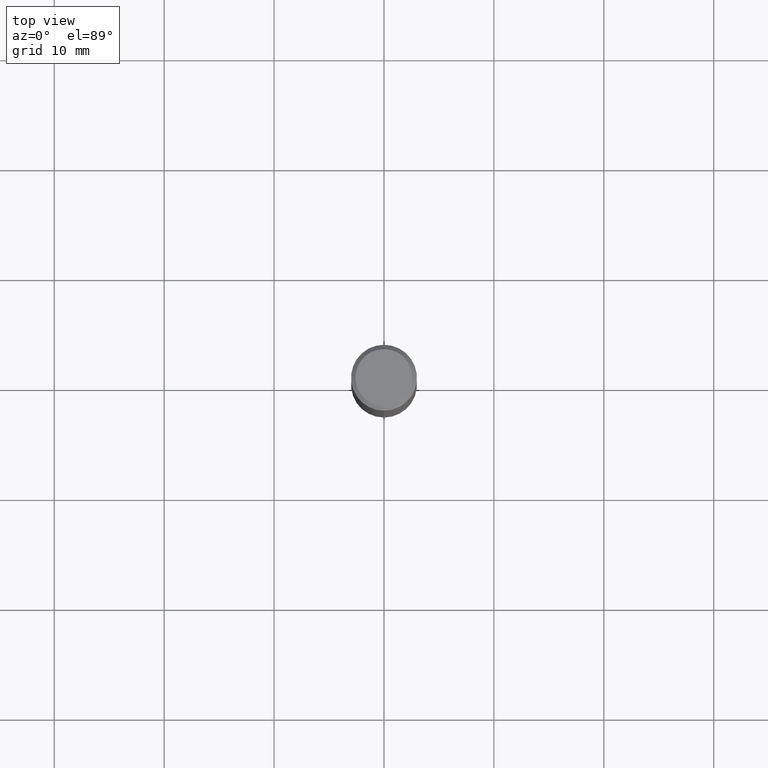
[diagram: clean part render]
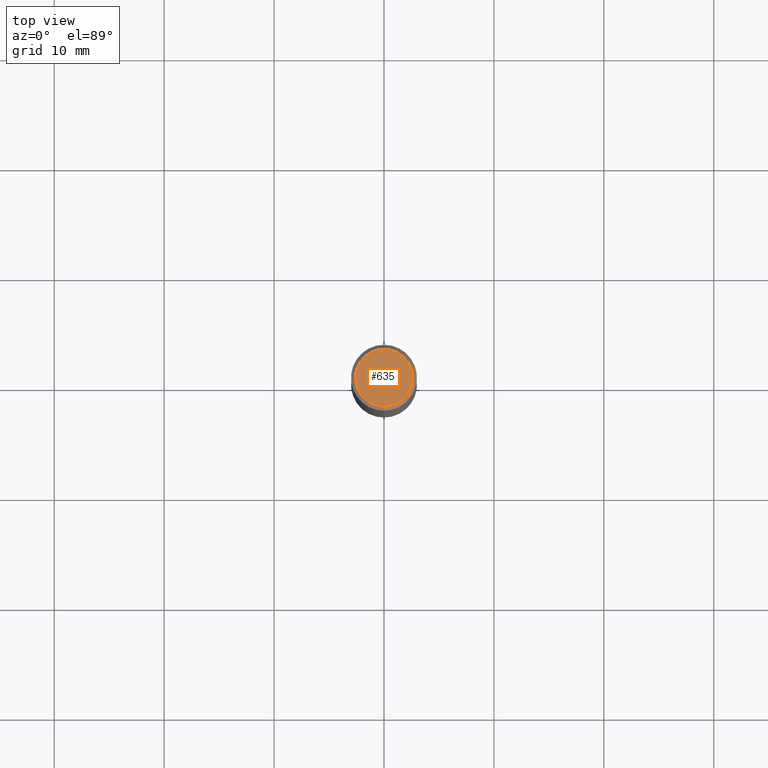
[diagram: same view with one face highlighted and labeled with its STEP entity id]
A machine part, top view. The second image highlights one B-rep face of the part: STEP entity #635.
In plain terms, the highlighted planar face has unit normal (-0, 0, 1).
Its self-contained STEP definition (entity closure, byte-faithful):
#269=VERTEX_POINT('',#760);
#547=EDGE_CURVE('',#269,#559,#1066,.T.);
#559=VERTEX_POINT('',#1078);
#583=EDGE_CURVE('',#559,#269,#1103,.T.);
#635=ADVANCED_FACE('',(#1160),#1161,.T.);
#760=CARTESIAN_POINT('',(0.0,2.6,0.0));
#1066=CIRCLE('',#3989,2.6);
#1078=CARTESIAN_POINT('',(3.18397651993818E-016,-2.6,0.0));
#1103=CIRCLE('',#4230,2.6);
#1160=FACE_OUTER_BOUND('',#4714,.T.);
#1161=PLANE('',#4715);
#3989=AXIS2_PLACEMENT_3D('',#5516,#5517,#5518);
#4230=AXIS2_PLACEMENT_3D('',#5547,#5548,#5549);
#4714=EDGE_LOOP('',(#5624,#5625));
#4715=AXIS2_PLACEMENT_3D('',#5626,#5627,#5628);
#5516=CARTESIAN_POINT('',(0.0,0.0,0.0));
#5517=DIRECTION('',(0.0,0.0,-1.0));
#5518=DIRECTION('',(0.0,1.0,0.0));
#5547=CARTESIAN_POINT('',(0.0,0.0,0.0));
#5548=DIRECTION('',(0.0,0.0,-1.0));
#5549=DIRECTION('',(0.0,1.0,0.0));
#5624=ORIENTED_EDGE('',*,*,#547,.F.);
#5625=ORIENTED_EDGE('',*,*,#583,.F.);
#5626=CARTESIAN_POINT('',(0.0,1.3,0.0));
#5627=DIRECTION('',(-0.0,0.0,1.0));
#5628=DIRECTION('',(0.0,-1.0,0.0));